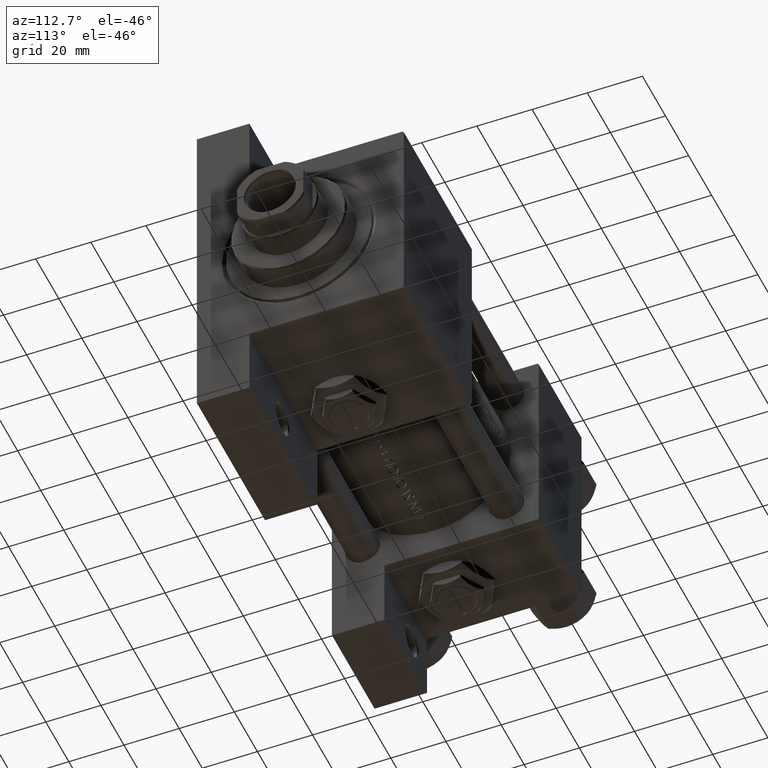
[diagram: clean part render]
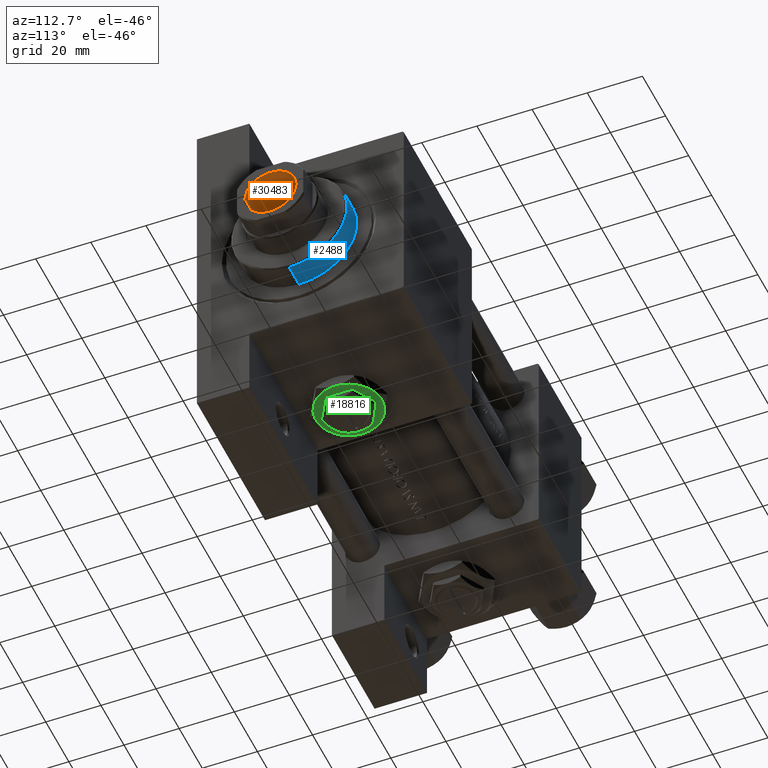
[diagram: same view with three faces highlighted in distinct colors, each labeled with its STEP entity id]
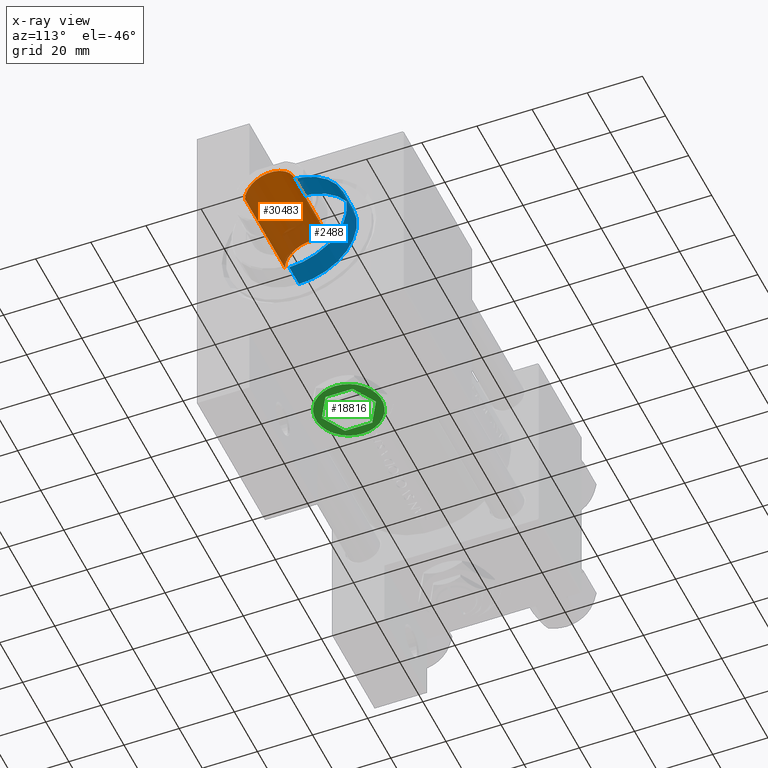
[diagram: x-ray of the same camera — body ghosted, the three highlighted faces saturated]
A machine part, auxiliary view with three faces highlighted in distinct colors.
The next image is the same camera in x-ray (body ghosted, the three faces saturated) — at least one of them is partly hidden behind the body in this view.
Their STEP definitions:

[orange] entity #30483 — the highlighted cylindrical surface (edge-blend (fillet) strip) has radius 9.25 mm, axis along (1, 0, 0).
#401 = CARTESIAN_POINT ( 'NONE',  ( -9.249999999999994671, 1.132798289211300909E-15, 141.7000000000000171 ) ) ;
#851 = DIRECTION ( 'NONE',  ( 1.000000000000000000, 0.000000000000000000, 0.000000000000000000 ) ) ;
#2310 = VERTEX_POINT ( 'NONE', #34571 ) ;
#3952 = EDGE_CURVE ( 'NONE', #48051, #2310, #34721, .T. ) ;
#5877 = CARTESIAN_POINT ( 'NONE',  ( -9.249999999999994671, 1.132798289211300909E-15, 142.0000000000000284 ) ) ;
#5932 = AXIS2_PLACEMENT_3D ( 'NONE', #22172, #26420, #10660 ) ;
#8554 = AXIS2_PLACEMENT_3D ( 'NONE', #38694, #15416, #851 ) ;
#10159 = DIRECTION ( 'NONE',  ( 1.000000000000000000, 0.000000000000000000, 0.000000000000000000 ) ) ;
#10660 = DIRECTION ( 'NONE',  ( 1.000000000000000000, 0.000000000000000000, 0.000000000000000000 ) ) ;
#14043 = CARTESIAN_POINT ( 'NONE',  ( 9.249999999999992895, 0.000000000000000000, 107.0000000000000142 ) ) ;
#14962 = ORIENTED_EDGE ( 'NONE', *, *, #15440, .F. ) ;
#15416 = DIRECTION ( 'NONE',  ( -0.000000000000000000, -0.000000000000000000, 1.000000000000000000 ) ) ;
#15440 = EDGE_CURVE ( 'NONE', #41370, #48051, #38150, .T. ) ;
#16317 = AXIS2_PLACEMENT_3D ( 'NONE', #43740, #47991, #10159 ) ;
#17197 = FACE_OUTER_BOUND ( 'NONE', #34727, .T. ) ;
#22172 = CARTESIAN_POINT ( 'NONE',  ( 0.000000000000000000, 0.000000000000000000, 141.7000000000000171 ) ) ;
#23797 = ORIENTED_EDGE ( 'NONE', *, *, #3952, .F. ) ;
#25952 = CIRCLE ( 'NONE', #5932, 9.249999999999994671 ) ;
#26126 = CARTESIAN_POINT ( 'NONE',  ( -9.249999999999992895, 1.132798289211300712E-15, 107.0000000000000142 ) ) ;
#26420 = DIRECTION ( 'NONE',  ( 0.000000000000000000, 0.000000000000000000, 1.000000000000000000 ) ) ;
#26963 = CARTESIAN_POINT ( 'NONE',  ( 9.249999999999994671, 0.000000000000000000, 142.0000000000000284 ) ) ;
#28248 = VERTEX_POINT ( 'NONE', #401 ) ;
#28437 = EDGE_CURVE ( 'NONE', #41370, #28248, #47723, .T. ) ;
#30483 = ADVANCED_FACE ( 'NONE', ( #17197 ), #32468, .F. ) ;
#30641 = VECTOR ( 'NONE', #35956, 1000.000000000000000 ) ;
#31328 = EDGE_CURVE ( 'NONE', #28248, #2310, #25952, .T. ) ;
#32468 = CYLINDRICAL_SURFACE ( 'NONE', #16317, 9.249999999999994671 ) ;
#33724 = DIRECTION ( 'NONE',  ( -0.000000000000000000, -0.000000000000000000, 1.000000000000000000 ) ) ;
#34571 = CARTESIAN_POINT ( 'NONE',  ( 9.249999999999994671, 0.000000000000000000, 141.7000000000000171 ) ) ;
#34721 = LINE ( 'NONE', #26963, #35476 ) ;
#34727 = EDGE_LOOP ( 'NONE', ( #14962, #47228, #35797, #23797 ) ) ;
#35476 = VECTOR ( 'NONE', #33724, 1000.000000000000000 ) ;
#35797 = ORIENTED_EDGE ( 'NONE', *, *, #31328, .T. ) ;
#35956 = DIRECTION ( 'NONE',  ( -0.000000000000000000, -0.000000000000000000, 1.000000000000000000 ) ) ;
#38150 = CIRCLE ( 'NONE', #8554, 9.249999999999992895 ) ;
#38694 = CARTESIAN_POINT ( 'NONE',  ( 0.000000000000000000, 0.000000000000000000, 107.0000000000000142 ) ) ;
#41370 = VERTEX_POINT ( 'NONE', #26126 ) ;
#43740 = CARTESIAN_POINT ( 'NONE',  ( 0.000000000000000000, 0.000000000000000000, 142.0000000000000284 ) ) ;
#47228 = ORIENTED_EDGE ( 'NONE', *, *, #28437, .T. ) ;
#47723 = LINE ( 'NONE', #5877, #30641 ) ;
#47991 = DIRECTION ( 'NONE',  ( -0.000000000000000000, -0.000000000000000000, 1.000000000000000000 ) ) ;
#48051 = VERTEX_POINT ( 'NONE', #14043 ) ;

[blue] entity #2488 — the highlighted cylindrical surface (partial cylindrical patch) has radius 21 mm, axis along (-1, -0, 0).
#619 = CARTESIAN_POINT ( 'NONE',  ( -21.00000000000000000, 0.000000000000000000, 28.69999999999999929 ) ) ;
#2488 = ADVANCED_FACE ( 'NONE', ( #26947 ), #26441, .T. ) ;
#3651 = DIRECTION ( 'NONE',  ( -0.000000000000000000, -0.000000000000000000, -1.000000000000000000 ) ) ;
#3965 = EDGE_CURVE ( 'NONE', #15455, #43355, #8272, .T. ) ;
#4382 = CARTESIAN_POINT ( 'NONE',  ( -21.00000000000000000, 0.000000000000000000, 37.19999999999999574 ) ) ;
#6695 = AXIS2_PLACEMENT_3D ( 'NONE', #34227, #49287, #49032 ) ;
#8188 = ORIENTED_EDGE ( 'NONE', *, *, #37940, .F. ) ;
#8272 = CIRCLE ( 'NONE', #6695, 21.00000000000000000 ) ;
#10850 = EDGE_CURVE ( 'NONE', #38589, #11639, #30823, .T. ) ;
#11362 = EDGE_CURVE ( 'NONE', #11639, #15455, #25380, .T. ) ;
#11639 = VERTEX_POINT ( 'NONE', #20819 ) ;
#13856 = CARTESIAN_POINT ( 'NONE',  ( 21.00000000000000000, 2.571758278209441661E-15, 37.69999999999999574 ) ) ;
#14690 = ORIENTED_EDGE ( 'NONE', *, *, #11362, .T. ) ;
#15455 = VERTEX_POINT ( 'NONE', #26664 ) ;
#15639 = VECTOR ( 'NONE', #43192, 1000.000000000000000 ) ;
#16035 = DIRECTION ( 'NONE',  ( 0.000000000000000000, 0.000000000000000000, -1.000000000000000000 ) ) ;
#17623 = DIRECTION ( 'NONE',  ( -0.000000000000000000, -0.000000000000000000, -1.000000000000000000 ) ) ;
#18937 = CARTESIAN_POINT ( 'NONE',  ( 0.000000000000000000, 0.000000000000000000, 37.69999999999999574 ) ) ;
#19078 = ORIENTED_EDGE ( 'NONE', *, *, #3965, .T. ) ;
#20249 = AXIS2_PLACEMENT_3D ( 'NONE', #18937, #3651, #42243 ) ;
#20819 = CARTESIAN_POINT ( 'NONE',  ( 21.00000000000000000, 2.571758278209441661E-15, 37.19999999999999574 ) ) ;
#21191 = VECTOR ( 'NONE', #17623, 1000.000000000000000 ) ;
#23650 = CARTESIAN_POINT ( 'NONE',  ( -21.00000000000000000, 0.000000000000000000, 37.69999999999999574 ) ) ;
#25380 = LINE ( 'NONE', #13856, #21191 ) ;
#26441 = CYLINDRICAL_SURFACE ( 'NONE', #20249, 21.00000000000000000 ) ;
#26664 = CARTESIAN_POINT ( 'NONE',  ( 21.00000000000000000, 2.571758278209441661E-15, 28.69999999999999929 ) ) ;
#26947 = FACE_OUTER_BOUND ( 'NONE', #34474, .T. ) ;
#30823 = CIRCLE ( 'NONE', #49225, 21.00000000000000000 ) ;
#31314 = DIRECTION ( 'NONE',  ( 1.000000000000000000, 0.000000000000000000, 0.000000000000000000 ) ) ;
#34227 = CARTESIAN_POINT ( 'NONE',  ( 0.000000000000000000, 0.000000000000000000, 28.69999999999999929 ) ) ;
#34474 = EDGE_LOOP ( 'NONE', ( #37854, #14690, #19078, #8188 ) ) ;
#37854 = ORIENTED_EDGE ( 'NONE', *, *, #10850, .T. ) ;
#37940 = EDGE_CURVE ( 'NONE', #38589, #43355, #42712, .T. ) ;
#38589 = VERTEX_POINT ( 'NONE', #4382 ) ;
#42243 = DIRECTION ( 'NONE',  ( -1.000000000000000000, 0.000000000000000000, 0.000000000000000000 ) ) ;
#42712 = LINE ( 'NONE', #23650, #15639 ) ;
#43078 = CARTESIAN_POINT ( 'NONE',  ( 0.000000000000000000, 0.000000000000000000, 37.19999999999999574 ) ) ;
#43192 = DIRECTION ( 'NONE',  ( -0.000000000000000000, -0.000000000000000000, -1.000000000000000000 ) ) ;
#43355 = VERTEX_POINT ( 'NONE', #619 ) ;
#49032 = DIRECTION ( 'NONE',  ( 1.000000000000000000, 0.000000000000000000, 0.000000000000000000 ) ) ;
#49225 = AXIS2_PLACEMENT_3D ( 'NONE', #43078, #16035, #31314 ) ;
#49287 = DIRECTION ( 'NONE',  ( 0.000000000000000000, 0.000000000000000000, 1.000000000000000000 ) ) ;

[green] entity #18816 — the highlighted planar face has unit normal (0, 0, -1).
#504 = CARTESIAN_POINT ( 'NONE',  ( 5.999999999999998224, -10.39230484541326760, 4.299999999999999822 ) ) ;
#676 = CARTESIAN_POINT ( 'NONE',  ( 8.499999999999996447, 4.907477288111821601, 4.299999999999999822 ) ) ;
#1131 = VERTEX_POINT ( 'NONE', #39930 ) ;
#1574 = ORIENTED_EDGE ( 'NONE', *, *, #18037, .T. ) ;
#1979 = DIRECTION ( 'NONE',  ( 1.000000000000000000, 0.000000000000000000, 0.000000000000000000 ) ) ;
#2150 = DIRECTION ( 'NONE',  ( 0.000000000000000000, 0.000000000000000000, 1.000000000000000000 ) ) ;
#2978 = ORIENTED_EDGE ( 'NONE', *, *, #14778, .F. ) ;
#3317 = CARTESIAN_POINT ( 'NONE',  ( 8.499999999999996447, 4.907477288111821601, 4.299999999999999822 ) ) ;
#3380 = DIRECTION ( 'NONE',  ( -0.8660254037844385966, -0.5000000000000000000, 0.000000000000000000 ) ) ;
#4394 = ORIENTED_EDGE ( 'NONE', *, *, #17655, .F. ) ;
#4535 = VERTEX_POINT ( 'NONE', #30590 ) ;
#5836 = ORIENTED_EDGE ( 'NONE', *, *, #15103, .F. ) ;
#5867 = DIRECTION ( 'NONE',  ( 1.000000000000000000, 0.000000000000000000, -0.000000000000000000 ) ) ;
#6110 = FACE_BOUND ( 'NONE', #22638, .T. ) ;
#6945 = VECTOR ( 'NONE', #15973, 1000.000000000000114 ) ;
#7255 = DIRECTION ( 'NONE',  ( 1.000000000000000000, 0.000000000000000000, 0.000000000000000000 ) ) ;
#7328 = CARTESIAN_POINT ( 'NONE',  ( 8.500000000000000000, -4.907477288111819824, 4.299999999999999822 ) ) ;
#7572 = EDGE_CURVE ( 'NONE', #33907, #26274, #23142, .T. ) ;
#7881 = DIRECTION ( 'NONE',  ( 0.8660254037844385966, -0.5000000000000001110, 0.000000000000000000 ) ) ;
#7996 = DIRECTION ( 'NONE',  ( -3.534857879381550604E-16, 1.000000000000000000, 0.000000000000000000 ) ) ;
#8627 = CIRCLE ( 'NONE', #40610, 12.00000000000000178 ) ;
#8664 = AXIS2_PLACEMENT_3D ( 'NONE', #32666, #28902, #5867 ) ;
#9211 = CARTESIAN_POINT ( 'NONE',  ( 0.000000000000000000, 0.000000000000000000, 4.299999999999999822 ) ) ;
#12517 = LINE ( 'NONE', #15536, #36509 ) ;
#12633 = AXIS2_PLACEMENT_3D ( 'NONE', #36715, #2150, #36230 ) ;
#12695 = EDGE_CURVE ( 'NONE', #39787, #38123, #28252, .T. ) ;
#13222 = CARTESIAN_POINT ( 'NONE',  ( 0.000000000000000000, 0.000000000000000000, 4.299999999999999822 ) ) ;
#14778 = EDGE_CURVE ( 'NONE', #33986, #33907, #12517, .T. ) ;
#15103 = EDGE_CURVE ( 'NONE', #38123, #4535, #42281, .T. ) ;
#15401 = CARTESIAN_POINT ( 'NONE',  ( -8.500000000000000000, -4.907477288111819824, 4.299999999999999822 ) ) ;
#15536 = CARTESIAN_POINT ( 'NONE',  ( -8.500000000000000000, 4.907477288111818048, 4.299999999999999822 ) ) ;
#15973 = DIRECTION ( 'NONE',  ( -0.8660254037844387076, 0.4999999999999998890, 0.000000000000000000 ) ) ;
#16008 = ORIENTED_EDGE ( 'NONE', *, *, #20568, .T. ) ;
#16271 = DIRECTION ( 'NONE',  ( 0.000000000000000000, -1.000000000000000000, 0.000000000000000000 ) ) ;
#16414 = CARTESIAN_POINT ( 'NONE',  ( -2.644623992720612091E-15, -9.814954576223637872, 4.299999999999999822 ) ) ;
#17297 = DIRECTION ( 'NONE',  ( 0.8660254037844388186, 0.4999999999999997224, 0.000000000000000000 ) ) ;
#17655 = EDGE_CURVE ( 'NONE', #4535, #33986, #30440, .T. ) ;
#17963 = VERTEX_POINT ( 'NONE', #504 ) ;
#18037 = EDGE_CURVE ( 'NONE', #25352, #48788, #8627, .T. ) ;
#18816 = ADVANCED_FACE ( 'NONE', ( #48709, #6110 ), #47957, .T. ) ;
#19024 = CARTESIAN_POINT ( 'NONE',  ( 0.000000000000000000, 0.000000000000000000, 4.299999999999999822 ) ) ;
#19658 = CARTESIAN_POINT ( 'NONE',  ( 11.99999999999999645, 3.004629197474318063E-15, 4.299999999999999822 ) ) ;
#20293 = EDGE_CURVE ( 'NONE', #26274, #39787, #21278, .T. ) ;
#20568 = EDGE_CURVE ( 'NONE', #48785, #25352, #39013, .T. ) ;
#20740 = ORIENTED_EDGE ( 'NONE', *, *, #32062, .T. ) ;
#21278 = LINE ( 'NONE', #28299, #32593 ) ;
#21474 = EDGE_LOOP ( 'NONE', ( #39483, #47720, #38421, #16008, #1574, #20740 ) ) ;
#21861 = AXIS2_PLACEMENT_3D ( 'NONE', #19024, #49603, #7255 ) ;
#22638 = EDGE_LOOP ( 'NONE', ( #4394, #5836, #35710, #32627, #32272, #2978 ) ) ;
#23142 = LINE ( 'NONE', #15401, #40302 ) ;
#23786 = DIRECTION ( 'NONE',  ( 0.000000000000000000, 0.000000000000000000, 1.000000000000000000 ) ) ;
#24816 = CARTESIAN_POINT ( 'NONE',  ( -6.000000000000001776, 10.39230484541326405, 4.299999999999999822 ) ) ;
#25352 = VERTEX_POINT ( 'NONE', #39620 ) ;
#26274 = VERTEX_POINT ( 'NONE', #16414 ) ;
#26742 = AXIS2_PLACEMENT_3D ( 'NONE', #31871, #47147, #28780 ) ;
#28074 = EDGE_CURVE ( 'NONE', #43350, #1131, #37830, .T. ) ;
#28252 = LINE ( 'NONE', #43060, #36429 ) ;
#28299 = CARTESIAN_POINT ( 'NONE',  ( -2.644623992720612091E-15, -9.814954576223637872, 4.299999999999999822 ) ) ;
#28780 = DIRECTION ( 'NONE',  ( 1.000000000000000000, 0.000000000000000000, 0.000000000000000000 ) ) ;
#28902 = DIRECTION ( 'NONE',  ( 0.000000000000000000, 0.000000000000000000, 1.000000000000000000 ) ) ;
#28977 = DIRECTION ( 'NONE',  ( 1.000000000000000000, 0.000000000000000000, 0.000000000000000000 ) ) ;
#29055 = CIRCLE ( 'NONE', #21861, 12.00000000000000178 ) ;
#29098 = EDGE_CURVE ( 'NONE', #17963, #43350, #29055, .T. ) ;
#30440 = LINE ( 'NONE', #38212, #38229 ) ;
#30590 = CARTESIAN_POINT ( 'NONE',  ( 0.000000000000000000, 9.814954576223637872, 4.299999999999999822 ) ) ;
#31871 = CARTESIAN_POINT ( 'NONE',  ( 0.000000000000000000, 0.000000000000000000, 4.299999999999999822 ) ) ;
#31907 = EDGE_CURVE ( 'NONE', #1131, #48785, #42751, .T. ) ;
#32062 = EDGE_CURVE ( 'NONE', #48788, #17963, #33122, .T. ) ;
#32272 = ORIENTED_EDGE ( 'NONE', *, *, #7572, .F. ) ;
#32593 = VECTOR ( 'NONE', #17297, 1000.000000000000114 ) ;
#32627 = ORIENTED_EDGE ( 'NONE', *, *, #20293, .F. ) ;
#32666 = CARTESIAN_POINT ( 'NONE',  ( 0.000000000000000000, 0.000000000000000000, 4.299999999999999822 ) ) ;
#33122 = CIRCLE ( 'NONE', #45119, 12.00000000000000178 ) ;
#33907 = VERTEX_POINT ( 'NONE', #36568 ) ;
#33986 = VERTEX_POINT ( 'NONE', #41814 ) ;
#35710 = ORIENTED_EDGE ( 'NONE', *, *, #12695, .F. ) ;
#35765 = DIRECTION ( 'NONE',  ( 1.000000000000000000, 0.000000000000000000, 0.000000000000000000 ) ) ;
#36230 = DIRECTION ( 'NONE',  ( 1.000000000000000000, 0.000000000000000000, 0.000000000000000000 ) ) ;
#36301 = CARTESIAN_POINT ( 'NONE',  ( 0.000000000000000000, 0.000000000000000000, 4.299999999999999822 ) ) ;
#36429 = VECTOR ( 'NONE', #7996, 1000.000000000000000 ) ;
#36509 = VECTOR ( 'NONE', #16271, 1000.000000000000000 ) ;
#36568 = CARTESIAN_POINT ( 'NONE',  ( -8.500000000000000000, -4.907477288111819824, 4.299999999999999822 ) ) ;
#36715 = CARTESIAN_POINT ( 'NONE',  ( 0.000000000000000000, 0.000000000000000000, 4.299999999999999822 ) ) ;
#36994 = DIRECTION ( 'NONE',  ( 0.000000000000000000, 0.000000000000000000, 1.000000000000000000 ) ) ;
#37830 = CIRCLE ( 'NONE', #47453, 12.00000000000000178 ) ;
#38123 = VERTEX_POINT ( 'NONE', #3317 ) ;
#38212 = CARTESIAN_POINT ( 'NONE',  ( 0.000000000000000000, 9.814954576223637872, 4.299999999999999822 ) ) ;
#38229 = VECTOR ( 'NONE', #3380, 1000.000000000000227 ) ;
#38421 = ORIENTED_EDGE ( 'NONE', *, *, #31907, .T. ) ;
#39013 = CIRCLE ( 'NONE', #12633, 12.00000000000000178 ) ;
#39483 = ORIENTED_EDGE ( 'NONE', *, *, #29098, .T. ) ;
#39620 = CARTESIAN_POINT ( 'NONE',  ( -12.00000000000000178, 0.000000000000000000, 4.299999999999999822 ) ) ;
#39787 = VERTEX_POINT ( 'NONE', #7328 ) ;
#39930 = CARTESIAN_POINT ( 'NONE',  ( 6.000000000000000888, 10.39230484541326582, 4.299999999999999822 ) ) ;
#40302 = VECTOR ( 'NONE', #7881, 1000.000000000000114 ) ;
#40610 = AXIS2_PLACEMENT_3D ( 'NONE', #36301, #23786, #1979 ) ;
#41814 = CARTESIAN_POINT ( 'NONE',  ( -8.500000000000000000, 4.907477288111818048, 4.299999999999999822 ) ) ;
#42218 = CARTESIAN_POINT ( 'NONE',  ( -6.000000000000000000, -10.39230484541326582, 4.299999999999999822 ) ) ;
#42281 = LINE ( 'NONE', #676, #6945 ) ;
#42751 = CIRCLE ( 'NONE', #26742, 12.00000000000000178 ) ;
#43038 = DIRECTION ( 'NONE',  ( 0.000000000000000000, 0.000000000000000000, 1.000000000000000000 ) ) ;
#43060 = CARTESIAN_POINT ( 'NONE',  ( 8.500000000000000000, -4.907477288111819824, 4.299999999999999822 ) ) ;
#43350 = VERTEX_POINT ( 'NONE', #19658 ) ;
#45119 = AXIS2_PLACEMENT_3D ( 'NONE', #9211, #43038, #35765 ) ;
#47147 = DIRECTION ( 'NONE',  ( 0.000000000000000000, 0.000000000000000000, 1.000000000000000000 ) ) ;
#47453 = AXIS2_PLACEMENT_3D ( 'NONE', #13222, #36994, #28977 ) ;
#47720 = ORIENTED_EDGE ( 'NONE', *, *, #28074, .T. ) ;
#47957 = PLANE ( 'NONE',  #8664 ) ;
#48709 = FACE_OUTER_BOUND ( 'NONE', #21474, .T. ) ;
#48785 = VERTEX_POINT ( 'NONE', #24816 ) ;
#48788 = VERTEX_POINT ( 'NONE', #42218 ) ;
#49603 = DIRECTION ( 'NONE',  ( 0.000000000000000000, 0.000000000000000000, 1.000000000000000000 ) ) ;